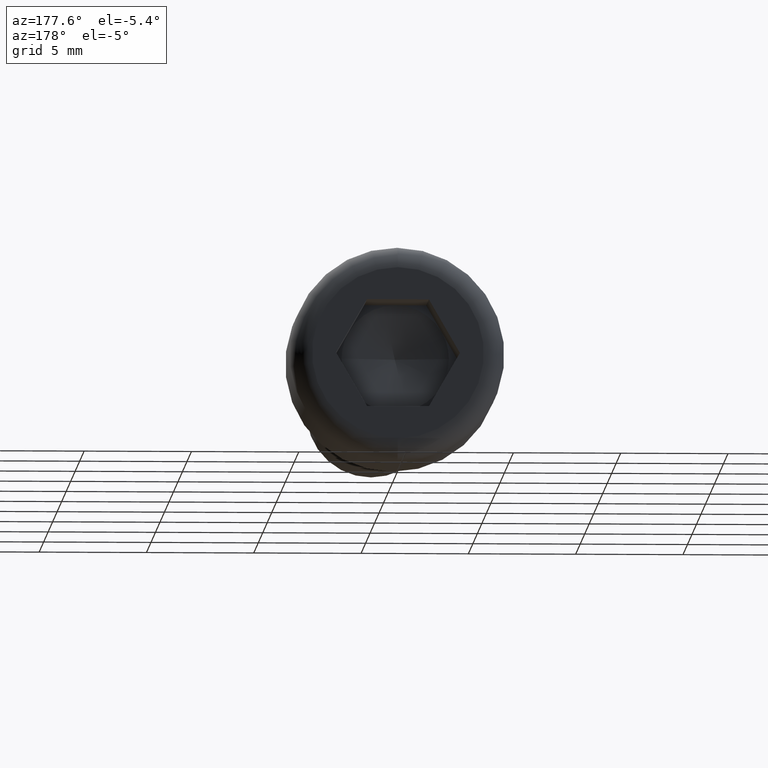
[diagram: clean part render]
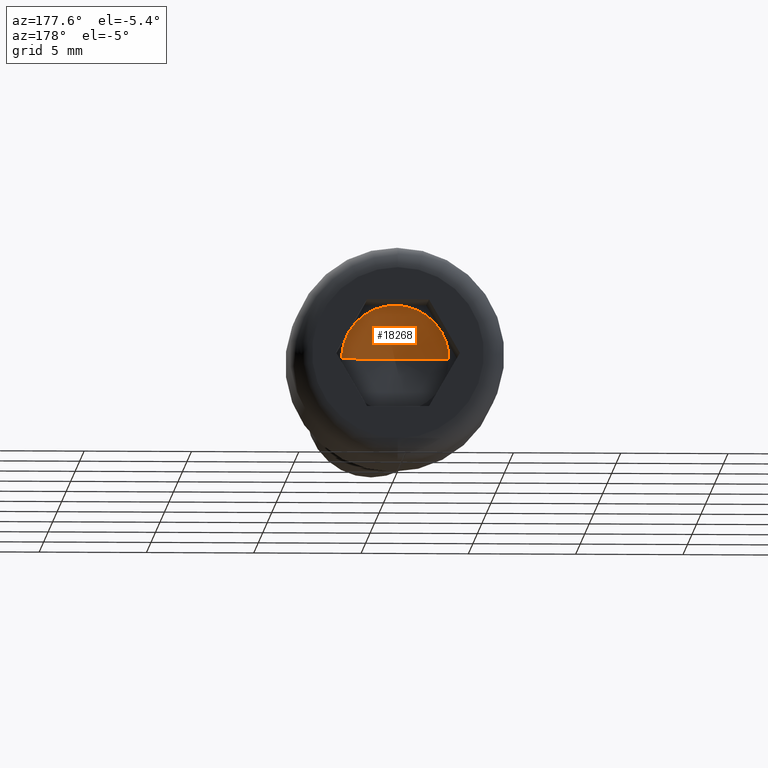
[diagram: same view with one face highlighted and labeled with its STEP entity id]
A machine part, auxiliary view. The second image highlights one B-rep face of the part: STEP entity #18268.
In plain terms, the highlighted conical surface has half-angle 78.69 deg.
Its self-contained STEP definition (entity closure, byte-faithful):
#112 = DIRECTION ( 'NONE',  ( -1.224646799147352961E-16, 1.000000000000000000, -0.000000000000000000 ) ) ;
#297 = DIRECTION ( 'NONE',  ( -1.000000000000000000, -1.734723475976807094E-16, 0.000000000000000000 ) ) ;
#344 = DIRECTION ( 'NONE',  ( -1.224646799147352961E-16, 1.000000000000000000, -0.000000000000000000 ) ) ;
#349 = ORIENTED_EDGE ( 'NONE', *, *, #16708, .T. ) ;
#454 = CIRCLE ( 'NONE', #9711, 2.500000000000000000 ) ;
#1230 = EDGE_CURVE ( 'NONE', #14696, #12542, #16907, .T. ) ;
#1292 = CIRCLE ( 'NONE', #3192, 2.500000000000000000 ) ;
#2135 = VECTOR ( 'NONE', #18549, 1000.000000000000000 ) ;
#2581 = VERTEX_POINT ( 'NONE', #3542 ) ;
#2685 = CARTESIAN_POINT ( 'NONE',  ( 0.000000000000000000, 2.500000000000000000, 0.000000000000000000 ) ) ;
#2809 = FACE_OUTER_BOUND ( 'NONE', #11129, .T. ) ;
#3031 = CONICAL_SURFACE ( 'NONE', #5264, 5000.000000000006366, 1.373400766945016116 ) ;
#3175 = DIRECTION ( 'NONE',  ( -1.224646799147352961E-16, 1.000000000000000000, -0.000000000000000000 ) ) ;
#3192 = AXIS2_PLACEMENT_3D ( 'NONE', #3852, #6656, #5190 ) ;
#3542 = CARTESIAN_POINT ( 'NONE',  ( -6.123233995736761105E-17, 2.999999999999999556, 2.500000000000000000 ) ) ;
#3852 = CARTESIAN_POINT ( 'NONE',  ( -6.123233995736761105E-17, 2.999999999999999556, 0.000000000000000000 ) ) ;
#4550 = CARTESIAN_POINT ( 'NONE',  ( -2.165063509461096825, 2.999999999999999112, 1.250000000000000222 ) ) ;
#4621 = ORIENTED_EDGE ( 'NONE', *, *, #1230, .T. ) ;
#4633 = CIRCLE ( 'NONE', #10594, 2.500000000000000000 ) ;
#4938 = CARTESIAN_POINT ( 'NONE',  ( -2.500000000000001332, 2.999999999999999112, 0.000000000000000000 ) ) ;
#5190 = DIRECTION ( 'NONE',  ( -1.000000000000000000, -1.734723475976807094E-16, 0.000000000000000000 ) ) ;
#5240 = VERTEX_POINT ( 'NONE', #10659 ) ;
#5264 = AXIS2_PLACEMENT_3D ( 'NONE', #13522, #3175, #16197 ) ;
#5812 = EDGE_CURVE ( 'NONE', #9187, #14335, #454, .T. ) ;
#6656 = DIRECTION ( 'NONE',  ( -1.224646799147352961E-16, 1.000000000000000000, -0.000000000000000000 ) ) ;
#7112 = ORIENTED_EDGE ( 'NONE', *, *, #9191, .T. ) ;
#7661 = DIRECTION ( 'NONE',  ( -1.000000000000000000, -1.734723475976807094E-16, 0.000000000000000000 ) ) ;
#8287 = ORIENTED_EDGE ( 'NONE', *, *, #13444, .F. ) ;
#9097 = AXIS2_PLACEMENT_3D ( 'NONE', #17342, #112, #297 ) ;
#9187 = VERTEX_POINT ( 'NONE', #4938 ) ;
#9191 = EDGE_CURVE ( 'NONE', #2581, #14696, #1292, .T. ) ;
#9711 = AXIS2_PLACEMENT_3D ( 'NONE', #12022, #344, #13462 ) ;
#10075 = EDGE_CURVE ( 'NONE', #5240, #9187, #18127, .T. ) ;
#10594 = AXIS2_PLACEMENT_3D ( 'NONE', #10608, #10731, #7661 ) ;
#10608 = CARTESIAN_POINT ( 'NONE',  ( -6.123233995736761105E-17, 2.999999999999999556, 0.000000000000000000 ) ) ;
#10659 = CARTESIAN_POINT ( 'NONE',  ( 0.000000000000000000, 2.500000000000000000, 0.000000000000000000 ) ) ;
#10731 = DIRECTION ( 'NONE',  ( -1.224646799147352961E-16, 1.000000000000000000, -0.000000000000000000 ) ) ;
#11129 = EDGE_LOOP ( 'NONE', ( #8287, #14921, #11362, #349, #7112, #4621 ) ) ;
#11362 = ORIENTED_EDGE ( 'NONE', *, *, #5812, .T. ) ;
#12022 = CARTESIAN_POINT ( 'NONE',  ( -6.123233995736761105E-17, 2.999999999999999556, 0.000000000000000000 ) ) ;
#12542 = VERTEX_POINT ( 'NONE', #17172 ) ;
#12952 = CARTESIAN_POINT ( 'NONE',  ( 2.165063509461096380, 3.000000000000000000, 1.250000000000000444 ) ) ;
#13399 = CARTESIAN_POINT ( 'NONE',  ( 0.000000000000000000, 2.500000000000000000, 0.000000000000000000 ) ) ;
#13444 = EDGE_CURVE ( 'NONE', #5240, #12542, #14140, .T. ) ;
#13462 = DIRECTION ( 'NONE',  ( -1.000000000000000000, -1.734723475976807094E-16, 0.000000000000000000 ) ) ;
#13522 = CARTESIAN_POINT ( 'NONE',  ( -1.224646799147352996E-13, 1002.500000000000000, 0.000000000000000000 ) ) ;
#14140 = LINE ( 'NONE', #13399, #15009 ) ;
#14335 = VERTEX_POINT ( 'NONE', #4550 ) ;
#14696 = VERTEX_POINT ( 'NONE', #12952 ) ;
#14921 = ORIENTED_EDGE ( 'NONE', *, *, #10075, .T. ) ;
#15009 = VECTOR ( 'NONE', #17440, 1000.000000000000000 ) ;
#16197 = DIRECTION ( 'NONE',  ( -1.000000000000000000, -1.332267629550186074E-16, 0.000000000000000000 ) ) ;
#16708 = EDGE_CURVE ( 'NONE', #14335, #2581, #4633, .T. ) ;
#16907 = CIRCLE ( 'NONE', #9097, 2.500000000000000000 ) ;
#17172 = CARTESIAN_POINT ( 'NONE',  ( 2.500000000000001332, 3.000000000000000000, 3.061616997868384620E-16 ) ) ;
#17342 = CARTESIAN_POINT ( 'NONE',  ( -6.123233995736761105E-17, 2.999999999999999556, 0.000000000000000000 ) ) ;
#17440 = DIRECTION ( 'NONE',  ( 0.9805806756909202226, 0.1961161351381839058, 1.200864985790634159E-16 ) ) ;
#18127 = LINE ( 'NONE', #2685, #2135 ) ;
#18268 = ADVANCED_FACE ( 'NONE', ( #2809 ), #3031, .F. ) ;
#18549 = DIRECTION ( 'NONE',  ( -0.9805806756909202226, 0.1961161351381836837, 0.000000000000000000 ) ) ;